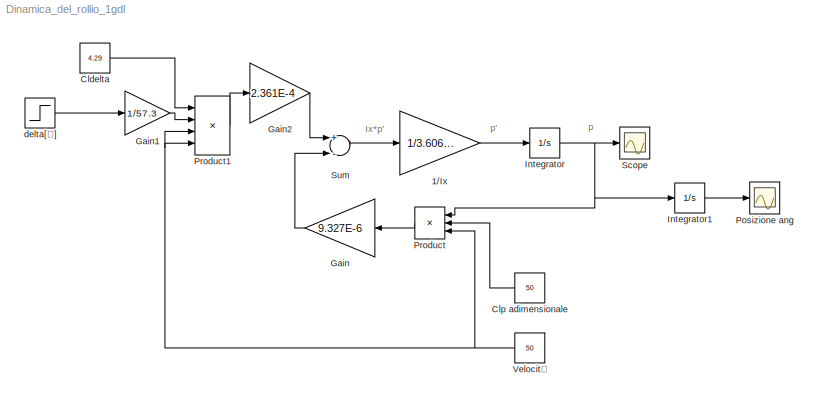
MODEL Dinamica_del_rollio_1gdl
KIND model
BLOCK [Gain] 1//Ix
  Gain = 1/3.606E-3
  OutDataTypeStr = Inherit: Inherit via internal rule
  ParamDataTypeStr = Inherit: Inherit via internal rule
  SID = 3
  SaturateOnIntegerOverflow = off
BLOCK [Constant] Cldelta
  SID = 10
  Value = 4.29
BLOCK [Constant] Clp adimensionale
  SID = 8
  Value = 50
BLOCK [Gain] Gain
  Gain = 9.327E-6
  OutDataTypeStr = Inherit: Inherit via internal rule
  ParamDataTypeStr = Inherit: Inherit via internal rule
  SID = 6
  SaturateOnIntegerOverflow = off
BLOCK [Gain] Gain1
  Gain = 1/57.3
  OutDataTypeStr = Inherit: Inherit via internal rule
  ParamDataTypeStr = Inherit: Inherit via internal rule
  SID = 12
  SaturateOnIntegerOverflow = off
BLOCK [Gain] Gain2
  Gain = 2.361E-4
  OutDataTypeStr = Inherit: Inherit via internal rule
  ParamDataTypeStr = Inherit: Inherit via internal rule
  SID = 14
  SaturateOnIntegerOverflow = off
BLOCK [Integrator] Integrator
  Ports = [1, 1]
  SID = 4
BLOCK [Integrator] Integrator1
  Ports = [1, 1]
  SID = 17
BLOCK [Scope] Posizione ang
  DataFormat = StructureWithTime
  Floating = off
  NumInputPorts = 1
  Ports = [1]
  SID = 18
  SampleTime = 0
  SaveName = ScopeData1
  TimeRange = 10
  YMax = 7
  YMin = 0
BLOCK [Product] Product
  InputSameDT = off
  Inputs = 3
  OutDataTypeStr = Inherit: Inherit via internal rule
  Ports = [3, 1]
  SID = 7
  SaturateOnIntegerOverflow = off
BLOCK [Product] Product1
  InputSameDT = off
  Inputs = 4
  OutDataTypeStr = Inherit: Inherit via internal rule
  Ports = [4, 1]
  SID = 13
  SaturateOnIntegerOverflow = off
BLOCK [Scope] Scope
  DataFormat = StructureWithTime
  Floating = off
  NumInputPorts = 1
  Ports = [1]
  SID = 5
  SampleTime = 0
  TimeRange = 10
  YMax = 7
  YMin = 0
BLOCK [Sum] Sum
  InputSameDT = off
  Inputs = +-
  OutDataTypeStr = Inherit: Inherit via internal rule
  Ports = [2, 1]
  SID = 2
  SaturateOnIntegerOverflow = off
BLOCK [Constant] Velocità
  SID = 9
  Value = 50
BLOCK [Step] delta[°]
  After = 9
  SID = 15
  SampleTime = 0
ANNOTATION (root): Ix*p'
ANNOTATION (root): p
ANNOTATION (root): p'
LINE 1//Ix:1 -> Integrator:1
LINE Cldelta:1 -> Product1:1
LINE Clp adimensionale:1 -> Product:2
LINE Gain1:1 -> Product1:2
LINE Gain2:1 -> Sum:1
LINE Gain:1 -> Sum:2
LINE Integrator1:1 -> Posizione ang:1
NET Integrator:1 -> Integrator1:1, Product:1, Scope:1
LINE Product1:1 -> Gain2:1
LINE Product:1 -> Gain:1
LINE Sum:1 -> 1//Ix:1
NET Velocità:1 -> Product1:3, Product1:4, Product:3
LINE delta[°]:1 -> Gain1:1
note: NET lines group one-source signal fan-out (src -> all destinations, sorted); 1:1 wires keep LINE
